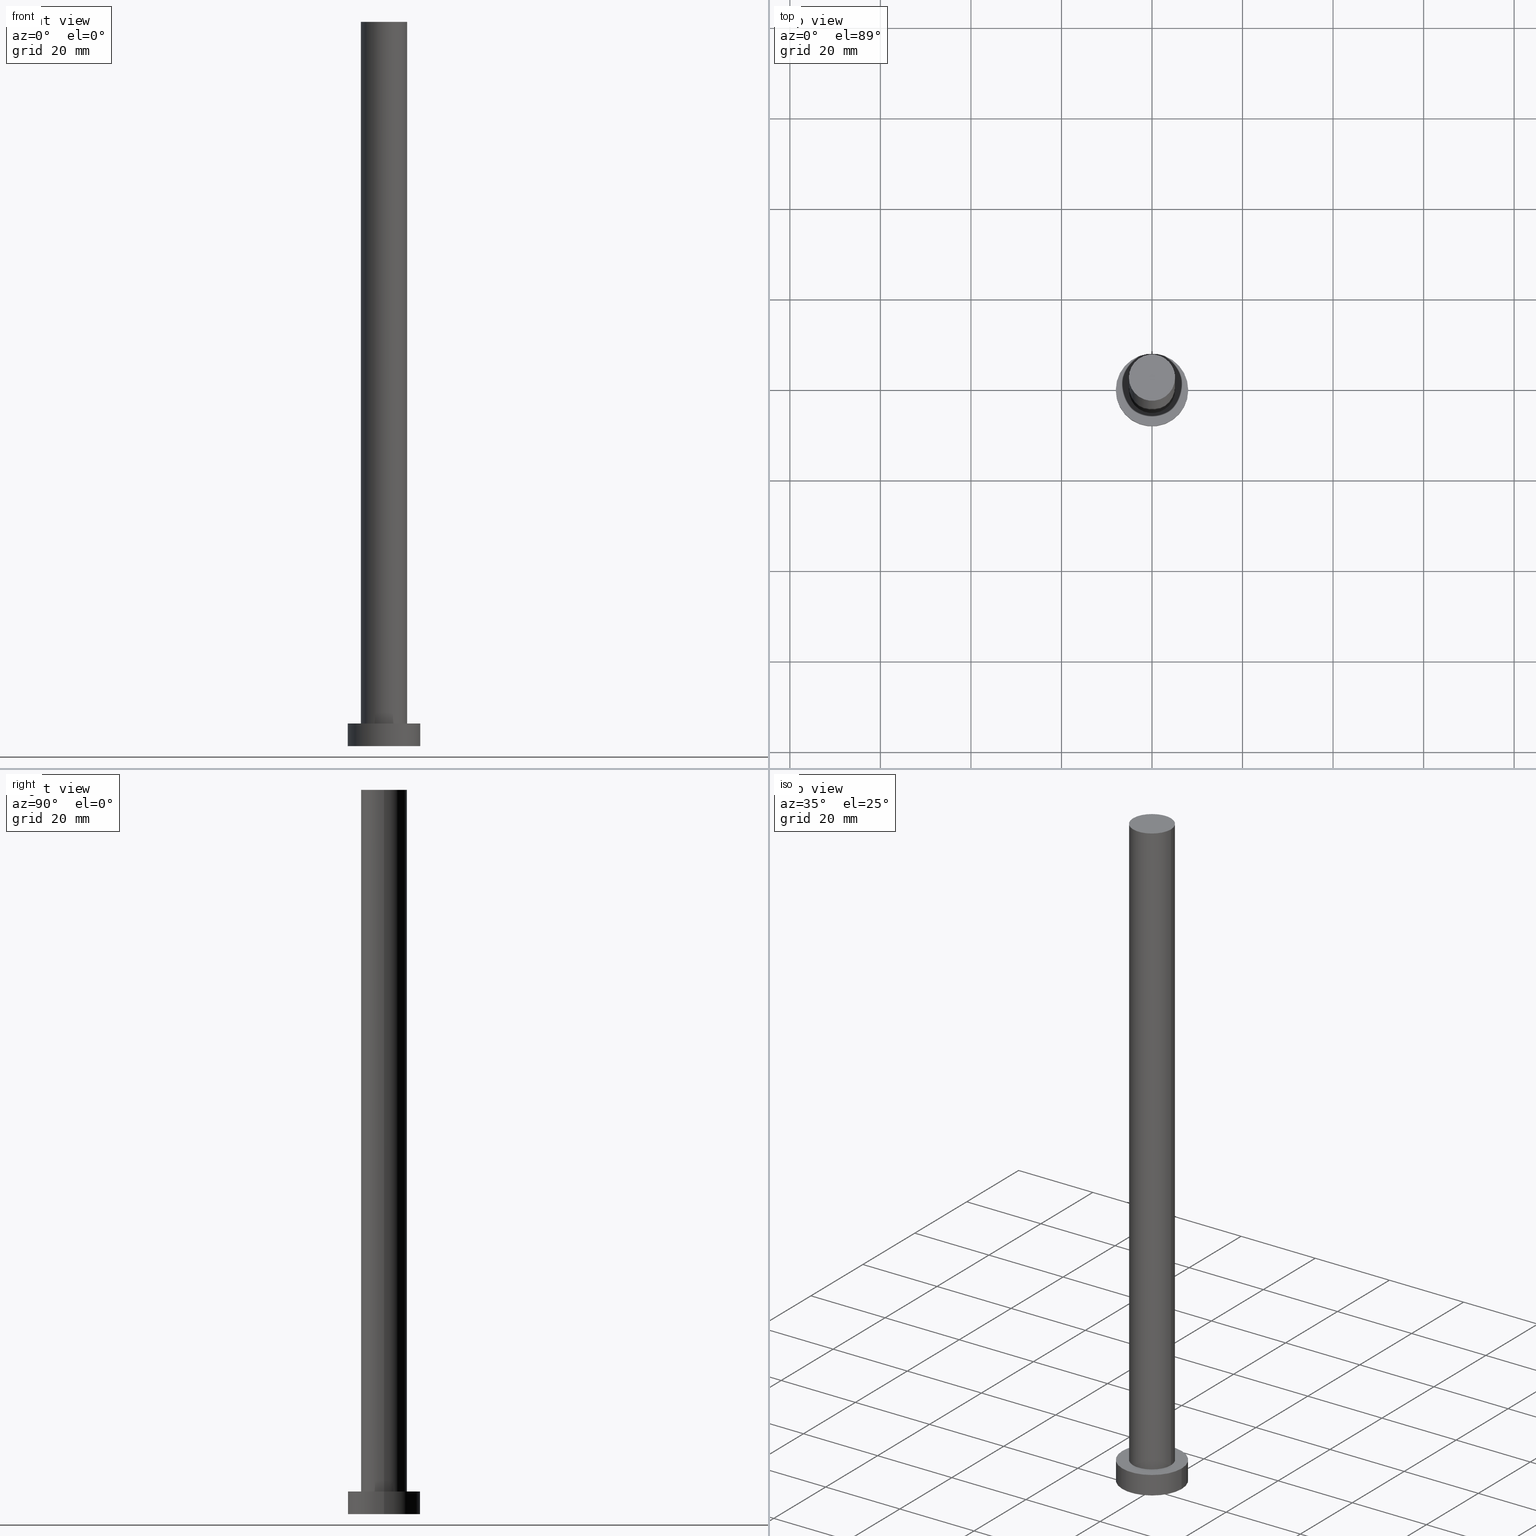
[diagram: canonical four-view strip — front | top / right | iso, engineering-drawing reading convention]
A machine part, canonical four-view strip (front | top / right | iso — engineering-drawing reading convention). The complete STEP part file that produces these views, byte-faithful:
ISO-10303-21;
HEADER;
FILE_DESCRIPTION (( 'STEP AP203' ),
    '1' );
FILE_NAME ('1567.STEP',
    '2023-02-13T11:14:19',
    ( '' ),
    ( '' ),
    'SwSTEP 2.0',
    'SolidWorks 2019',
    '' );
FILE_SCHEMA (( 'CONFIG_CONTROL_DESIGN' ));
ENDSEC;

DATA;
#1 = DIRECTION ( 'NONE',  ( -1.000000000000000000, 0.000000000000000000, 0.000000000000000000 ) ) ;
#2 = CARTESIAN_POINT ( 'NONE',  ( 0.000000000000000000, 0.000000000000000000, 0.000000000000000000 ) ) ;
#3 = VERTEX_POINT ( 'NONE', #233 ) ;
#4 = CIRCLE ( 'NONE', #102, 8.000000000000000000 ) ;
#5 = CALENDAR_DATE ( 2023, 13, 2 ) ;
#6 = DATE_AND_TIME ( #183, #180 ) ;
#7 = ADVANCED_FACE ( 'NONE', ( #207, #46 ), #107, .T. ) ;
#8 = CARTESIAN_POINT ( 'NONE',  ( 5.100000000000001421, 6.245698675651502811E-16, 160.0000000000000000 ) ) ;
#9 = LINE ( 'NONE', #246, #85 ) ;
#10 = CARTESIAN_POINT ( 'NONE',  ( 0.000000000000000000, 0.000000000000000000, 160.0000000000000000 ) ) ;
#11 = DESIGN_CONTEXT ( 'detailed design', #103, 'design' ) ;
#12 = CARTESIAN_POINT ( 'NONE',  ( 0.000000000000000000, 0.000000000000000000, 160.0000000000000000 ) ) ;
#13 = MANIFOLD_SOLID_BREP ( 'P�idat vysunut�m3', #67 ) ;
#14 = DIRECTION ( 'NONE',  ( -0.000000000000000000, -0.000000000000000000, -1.000000000000000000 ) ) ;
#15 = PERSON_AND_ORGANIZATION ( #235, #80 ) ;
#16 = DIRECTION ( 'NONE',  ( 0.000000000000000000, 0.000000000000000000, 1.000000000000000000 ) ) ;
#17 = EDGE_CURVE ( 'NONE', #92, #36, #167, .T. ) ;
#18 = APPLICATION_PROTOCOL_DEFINITION ( 'international standard', 'config_control_design', 1994, #103 ) ;
#19 = PRODUCT_RELATED_PRODUCT_CATEGORY ( 'detail', '', ( #105 ) ) ;
#20 = CC_DESIGN_DATE_AND_TIME_ASSIGNMENT ( #6, #139, ( #109 ) ) ;
#21 = APPROVAL_ROLE ( '' ) ;
#22 = ORIENTED_EDGE ( 'NONE', *, *, #194, .F. ) ;
#23 = COORDINATED_UNIVERSAL_TIME_OFFSET ( 1, 0, .AHEAD. ) ;
#24 =( GEOMETRIC_REPRESENTATION_CONTEXT ( 3 ) GLOBAL_UNCERTAINTY_ASSIGNED_CONTEXT ( ( #66 ) ) GLOBAL_UNIT_ASSIGNED_CONTEXT ( ( #188, #152, #250 ) ) REPRESENTATION_CONTEXT ( 'NONE', 'WORKASPACE' ) );
#25 = EDGE_CURVE ( 'NONE', #130, #110, #45, .T. ) ;
#26 = PERSON_AND_ORGANIZATION ( #235, #80 ) ;
#27 = LINE ( 'NONE', #189, #210 ) ;
#28 = APPROVAL_DATE_TIME ( #140, #155 ) ;
#29 = DIRECTION ( 'NONE',  ( 0.000000000000000000, 0.000000000000000000, 1.000000000000000000 ) ) ;
#30 = CIRCLE ( 'NONE', #129, 8.000000000000000000 ) ;
#31 = APPROVAL_DATE_TIME ( #126, #224 ) ;
#32 = PLANE ( 'NONE',  #35 ) ;
#33 = EDGE_CURVE ( 'NONE', #36, #92, #158, .T. ) ;
#34 = CIRCLE ( 'NONE', #208, 8.000000000000000000 ) ;
#35 = AXIS2_PLACEMENT_3D ( 'NONE', #12, #206, #186 ) ;
#36 = VERTEX_POINT ( 'NONE', #148 ) ;
#37 = COORDINATED_UNIVERSAL_TIME_OFFSET ( 1, 0, .AHEAD. ) ;
#38 = PERSON_AND_ORGANIZATION_ROLE ( 'design_owner' ) ;
#39 = MECHANICAL_CONTEXT ( 'NONE', #52, 'mechanical' ) ;
#40 = DIRECTION ( 'NONE',  ( -1.000000000000000000, 0.000000000000000000, 0.000000000000000000 ) ) ;
#41 = ORIENTED_EDGE ( 'NONE', *, *, #119, .T. ) ;
#42 = DATE_AND_TIME ( #5, #231 ) ;
#43 = CARTESIAN_POINT ( 'NONE',  ( 0.000000000000000000, 0.000000000000000000, 0.000000000000000000 ) ) ;
#44 = FACE_OUTER_BOUND ( 'NONE', #90, .T. ) ;
#45 = CIRCLE ( 'NONE', #136, 5.100000000000001421 ) ;
#46 = FACE_OUTER_BOUND ( 'NONE', #232, .T. ) ;
#47 = ADVANCED_FACE ( 'NONE', ( #48 ), #32, .T. ) ;
#48 = FACE_OUTER_BOUND ( 'NONE', #185, .T. ) ;
#49 = ORIENTED_EDGE ( 'NONE', *, *, #219, .F. ) ;
#50 = EDGE_CURVE ( 'NONE', #3, #255, #201, .T. ) ;
#51 = CC_DESIGN_APPROVAL ( #155, ( #149 ) ) ;
#52 = APPLICATION_CONTEXT ( 'configuration controlled 3d designs of mechanical parts and assemblies' ) ;
#53 = ORIENTED_EDGE ( 'NONE', *, *, #25, .F. ) ;
#54 = PERSON_AND_ORGANIZATION_ROLE ( 'design_supplier' ) ;
#55 = PERSON_AND_ORGANIZATION_ROLE ( 'classification_officer' ) ;
#56 = VERTEX_POINT ( 'NONE', #122 ) ;
#57 = CC_DESIGN_PERSON_AND_ORGANIZATION_ASSIGNMENT ( #196, #156, ( #75 ) ) ;
#58 = EDGE_LOOP ( 'NONE', ( #145, #131, #41, #87 ) ) ;
#59 = APPROVAL_PERSON_ORGANIZATION ( #26, #123, #21 ) ;
#60 = CARTESIAN_POINT ( 'NONE',  ( 8.000000000000000000, 9.797174393178825657E-16, 0.000000000000000000 ) ) ;
#61 = AXIS2_PLACEMENT_3D ( 'NONE', #203, #79, #154 ) ;
#62 = CC_DESIGN_PERSON_AND_ORGANIZATION_ASSIGNMENT ( #94, #54, ( #75 ) ) ;
#63 = CARTESIAN_POINT ( 'NONE',  ( 0.000000000000000000, 0.000000000000000000, 160.0000000000000000 ) ) ;
#64 = AXIS2_PLACEMENT_3D ( 'NONE', #181, #137, #1 ) ;
#65 = DIRECTION ( 'NONE',  ( 1.000000000000000000, 0.000000000000000000, -0.000000000000000000 ) ) ;
#66 = UNCERTAINTY_MEASURE_WITH_UNIT (LENGTH_MEASURE( 1.000000000000000082E-05 ), #188, 'distance_accuracy_value', 'NONE');
#67 = CLOSED_SHELL ( 'NONE', ( #111, #179, #234, #7, #241, #239, #47 ) ) ;
#68 = DIRECTION ( 'NONE',  ( 1.000000000000000000, 0.000000000000000000, 0.000000000000000000 ) ) ;
#69 = EDGE_LOOP ( 'NONE', ( #251, #113, #254, #153 ) ) ;
#70 = CALENDAR_DATE ( 2023, 13, 2 ) ;
#71 = AXIS2_PLACEMENT_3D ( 'NONE', #10, #29, #193 ) ;
#72 = ORIENTED_EDGE ( 'NONE', *, *, #25, .T. ) ;
#73 = ORIENTED_EDGE ( 'NONE', *, *, #194, .T. ) ;
#74 = CYLINDRICAL_SURFACE ( 'NONE', #64, 8.000000000000000000 ) ;
#75 = PRODUCT_DEFINITION_FORMATION_WITH_SPECIFIED_SOURCE ( 'LIBOVOLN�', '', #105, .NOT_KNOWN. ) ;
#76 = DIRECTION ( 'NONE',  ( 0.000000000000000000, 0.000000000000000000, 1.000000000000000000 ) ) ;
#77 = EDGE_CURVE ( 'NONE', #56, #127, #9, .T. ) ;
#78 = AXIS2_PLACEMENT_3D ( 'NONE', #171, #248, #106 ) ;
#79 = DIRECTION ( 'NONE',  ( -0.000000000000000000, -0.000000000000000000, -1.000000000000000000 ) ) ;
#80 = ORGANIZATION ( 'NEUR�EN�', 'NEUR�EN�', '' ) ;
#81 = APPROVAL_ROLE ( '' ) ;
#82 = DATE_AND_TIME ( #151, #199 ) ;
#83 = CARTESIAN_POINT ( 'NONE',  ( 0.000000000000000000, 0.000000000000000000, 5.000000000000000000 ) ) ;
#84 = ORIENTED_EDGE ( 'NONE', *, *, #204, .T. ) ;
#85 = VECTOR ( 'NONE', #143, 1000.000000000000000 ) ;
#86 = APPROVAL_STATUS ( 'not_yet_approved' ) ;
#87 = ORIENTED_EDGE ( 'NONE', *, *, #50, .F. ) ;
#88 = ORIENTED_EDGE ( 'NONE', *, *, #182, .T. ) ;
#89 = DATE_TIME_ROLE ( 'creation_date' ) ;
#90 = EDGE_LOOP ( 'NONE', ( #49, #73, #214, #252 ) ) ;
#91 = APPROVAL_ROLE ( '' ) ;
#92 = VERTEX_POINT ( 'NONE', #142 ) ;
#93 = CARTESIAN_POINT ( 'NONE',  ( 0.000000000000000000, 0.000000000000000000, 160.0000000000000000 ) ) ;
#94 = PERSON_AND_ORGANIZATION ( #235, #80 ) ;
#95 = CC_DESIGN_PERSON_AND_ORGANIZATION_ASSIGNMENT ( #236, #38, ( #105 ) ) ;
#96 = LOCAL_TIME ( 12, 14, 19.00000000000000000, #226 ) ;
#97 = APPROVAL_STATUS ( 'not_yet_approved' ) ;
#98 = AXIS2_PLACEMENT_3D ( 'NONE', #63, #144, #227 ) ;
#99 = AXIS2_PLACEMENT_3D ( 'NONE', #134, #216, #157 ) ;
#100 = DIRECTION ( 'NONE',  ( 1.000000000000000000, 0.000000000000000000, 0.000000000000000000 ) ) ;
#101 = DIRECTION ( 'NONE',  ( 1.000000000000000000, 0.000000000000000000, 0.000000000000000000 ) ) ;
#102 = AXIS2_PLACEMENT_3D ( 'NONE', #124, #170, #202 ) ;
#103 = APPLICATION_CONTEXT ( 'configuration controlled 3d designs of mechanical parts and assemblies' ) ;
#104 = CYLINDRICAL_SURFACE ( 'NONE', #98, 5.100000000000001421 ) ;
#105 = PRODUCT ( '1567', '1567', '', ( #39 ) ) ;
#106 = DIRECTION ( 'NONE',  ( 1.000000000000000000, 0.000000000000000000, 0.000000000000000000 ) ) ;
#107 = PLANE ( 'NONE',  #237 ) ;
#108 = CARTESIAN_POINT ( 'NONE',  ( 0.000000000000000000, 0.000000000000000000, 160.0000000000000000 ) ) ;
#109 = SECURITY_CLASSIFICATION ( '', '', #138 ) ;
#110 = VERTEX_POINT ( 'NONE', #168 ) ;
#111 = ADVANCED_FACE ( 'NONE', ( #44 ), #104, .T. ) ;
#112 = PERSON_AND_ORGANIZATION ( #235, #80 ) ;
#113 = ORIENTED_EDGE ( 'NONE', *, *, #204, .F. ) ;
#114 = EDGE_CURVE ( 'NONE', #130, #92, #27, .T. ) ;
#115 = PLANE ( 'NONE',  #99 ) ;
#116 = ORIENTED_EDGE ( 'NONE', *, *, #119, .F. ) ;
#117 = CC_DESIGN_APPROVAL ( #123, ( #109 ) ) ;
#118 = VECTOR ( 'NONE', #166, 1000.000000000000000 ) ;
#119 = EDGE_CURVE ( 'NONE', #127, #255, #169, .T. ) ;
#120 = DIRECTION ( 'NONE',  ( 0.000000000000000000, 0.000000000000000000, 1.000000000000000000 ) ) ;
#121 = AXIS2_PLACEMENT_3D ( 'NONE', #2, #76, #159 ) ;
#122 = CARTESIAN_POINT ( 'NONE',  ( 8.000000000000000000, 9.797174393178825657E-16, 5.000000000000000000 ) ) ;
#123 = APPROVAL ( #97, 'NEUR�EN�' ) ;
#124 = CARTESIAN_POINT ( 'NONE',  ( 0.000000000000000000, 0.000000000000000000, 5.000000000000000000 ) ) ;
#125 = CARTESIAN_POINT ( 'NONE',  ( 0.000000000000000000, 0.000000000000000000, 5.000000000000000000 ) ) ;
#126 = DATE_AND_TIME ( #146, #96 ) ;
#127 = VERTEX_POINT ( 'NONE', #60 ) ;
#128 = DIRECTION ( 'NONE',  ( 1.000000000000000000, 0.000000000000000000, 0.000000000000000000 ) ) ;
#129 = AXIS2_PLACEMENT_3D ( 'NONE', #43, #120, #101 ) ;
#130 = VERTEX_POINT ( 'NONE', #225 ) ;
#131 = ORIENTED_EDGE ( 'NONE', *, *, #77, .T. ) ;
#132 = VECTOR ( 'NONE', #184, 1000.000000000000000 ) ;
#133 = APPROVAL_STATUS ( 'not_yet_approved' ) ;
#134 = CARTESIAN_POINT ( 'NONE',  ( 0.000000000000000000, 0.000000000000000000, 0.000000000000000000 ) ) ;
#135 = COORDINATED_UNIVERSAL_TIME_OFFSET ( 1, 0, .AHEAD. ) ;
#136 = AXIS2_PLACEMENT_3D ( 'NONE', #108, #16, #128 ) ;
#137 = DIRECTION ( 'NONE',  ( -0.000000000000000000, -0.000000000000000000, -1.000000000000000000 ) ) ;
#138 = SECURITY_CLASSIFICATION_LEVEL ( 'unclassified' ) ;
#139 = DATE_TIME_ROLE ( 'classification_date' ) ;
#140 = DATE_AND_TIME ( #70, #165 ) ;
#141 = FACE_OUTER_BOUND ( 'NONE', #58, .T. ) ;
#142 = CARTESIAN_POINT ( 'NONE',  ( -5.100000000000001421, 0.000000000000000000, 5.000000000000000000 ) ) ;
#143 = DIRECTION ( 'NONE',  ( -0.000000000000000000, -0.000000000000000000, -1.000000000000000000 ) ) ;
#144 = DIRECTION ( 'NONE',  ( -0.000000000000000000, -0.000000000000000000, -1.000000000000000000 ) ) ;
#145 = ORIENTED_EDGE ( 'NONE', *, *, #182, .F. ) ;
#146 = CALENDAR_DATE ( 2023, 13, 2 ) ;
#147 = DIRECTION ( 'NONE',  ( 1.000000000000000000, 0.000000000000000000, 0.000000000000000000 ) ) ;
#148 = CARTESIAN_POINT ( 'NONE',  ( 5.100000000000001421, 6.245698675651502811E-16, 5.000000000000000000 ) ) ;
#149 = PRODUCT_DEFINITION ( 'NEZN�M�', '', #75, #11 ) ;
#150 = EDGE_LOOP ( 'NONE', ( #22, #53, #197, #228 ) ) ;
#151 = CALENDAR_DATE ( 2023, 13, 2 ) ;
#152 =( NAMED_UNIT ( * ) PLANE_ANGLE_UNIT ( ) SI_UNIT ( $, .RADIAN. ) );
#153 = ORIENTED_EDGE ( 'NONE', *, *, #247, .T. ) ;
#154 = DIRECTION ( 'NONE',  ( -1.000000000000000000, 0.000000000000000000, 0.000000000000000000 ) ) ;
#155 = APPROVAL ( #133, 'NEUR�EN�' ) ;
#156 = PERSON_AND_ORGANIZATION_ROLE ( 'creator' ) ;
#157 = DIRECTION ( 'NONE',  ( 1.000000000000000000, 0.000000000000000000, -0.000000000000000000 ) ) ;
#158 = CIRCLE ( 'NONE', #175, 5.100000000000001421 ) ;
#159 = DIRECTION ( 'NONE',  ( 1.000000000000000000, 0.000000000000000000, 0.000000000000000000 ) ) ;
#160 = DIRECTION ( 'NONE',  ( -0.000000000000000000, -0.000000000000000000, -1.000000000000000000 ) ) ;
#161 = CARTESIAN_POINT ( 'NONE',  ( 0.000000000000000000, 0.000000000000000000, 5.000000000000000000 ) ) ;
#162 = ORIENTED_EDGE ( 'NONE', *, *, #219, .T. ) ;
#163 = CYLINDRICAL_SURFACE ( 'NONE', #215, 5.100000000000001421 ) ;
#164 = LINE ( 'NONE', #8, #118 ) ;
#165 = LOCAL_TIME ( 12, 14, 19.00000000000000000, #37 ) ;
#166 = DIRECTION ( 'NONE',  ( -0.000000000000000000, -0.000000000000000000, -1.000000000000000000 ) ) ;
#167 = CIRCLE ( 'NONE', #217, 5.100000000000001421 ) ;
#168 = CARTESIAN_POINT ( 'NONE',  ( 5.100000000000001421, 6.245698675651502811E-16, 160.0000000000000000 ) ) ;
#169 = CIRCLE ( 'NONE', #78, 8.000000000000000000 ) ;
#170 = DIRECTION ( 'NONE',  ( 0.000000000000000000, 0.000000000000000000, 1.000000000000000000 ) ) ;
#171 = CARTESIAN_POINT ( 'NONE',  ( 0.000000000000000000, 0.000000000000000000, 0.000000000000000000 ) ) ;
#172 = DIRECTION ( 'NONE',  ( 0.000000000000000000, 0.000000000000000000, 1.000000000000000000 ) ) ;
#173 = PERSON_AND_ORGANIZATION ( #235, #80 ) ;
#174 = DIRECTION ( 'NONE',  ( 0.000000000000000000, 0.000000000000000000, 1.000000000000000000 ) ) ;
#175 = AXIS2_PLACEMENT_3D ( 'NONE', #83, #174, #68 ) ;
#176 = CC_DESIGN_DATE_AND_TIME_ASSIGNMENT ( #82, #89, ( #149 ) ) ;
#177 = ORIENTED_EDGE ( 'NONE', *, *, #17, .F. ) ;
#178 = PERSON_AND_ORGANIZATION ( #235, #80 ) ;
#179 = ADVANCED_FACE ( 'NONE', ( #141 ), #222, .T. ) ;
#180 = LOCAL_TIME ( 12, 14, 19.00000000000000000, #135 ) ;
#181 = CARTESIAN_POINT ( 'NONE',  ( 0.000000000000000000, 0.000000000000000000, 5.000000000000000000 ) ) ;
#182 = EDGE_CURVE ( 'NONE', #56, #3, #34, .T. ) ;
#183 = CALENDAR_DATE ( 2023, 13, 2 ) ;
#184 = DIRECTION ( 'NONE',  ( -0.000000000000000000, -0.000000000000000000, -1.000000000000000000 ) ) ;
#185 = EDGE_LOOP ( 'NONE', ( #72, #162 ) ) ;
#186 = DIRECTION ( 'NONE',  ( 1.000000000000000000, 0.000000000000000000, -0.000000000000000000 ) ) ;
#187 = ADVANCED_BREP_SHAPE_REPRESENTATION ( '1567', ( #13, #121 ), #24 ) ;
#188 =( LENGTH_UNIT ( ) NAMED_UNIT ( * ) SI_UNIT ( .MILLI., .METRE. ) );
#189 = CARTESIAN_POINT ( 'NONE',  ( -5.100000000000001421, 0.000000000000000000, 160.0000000000000000 ) ) ;
#190 = CARTESIAN_POINT ( 'NONE',  ( 0.000000000000000000, 0.000000000000000000, 5.000000000000000000 ) ) ;
#191 = APPROVAL_PERSON_ORGANIZATION ( #112, #155, #91 ) ;
#192 = COORDINATED_UNIVERSAL_TIME_OFFSET ( 1, 0, .AHEAD. ) ;
#193 = DIRECTION ( 'NONE',  ( 1.000000000000000000, 0.000000000000000000, 0.000000000000000000 ) ) ;
#194 = EDGE_CURVE ( 'NONE', #110, #36, #164, .T. ) ;
#195 = CIRCLE ( 'NONE', #71, 5.100000000000001421 ) ;
#196 = PERSON_AND_ORGANIZATION ( #235, #80 ) ;
#197 = ORIENTED_EDGE ( 'NONE', *, *, #114, .T. ) ;
#198 = FACE_OUTER_BOUND ( 'NONE', #150, .T. ) ;
#199 = LOCAL_TIME ( 12, 14, 19.00000000000000000, #192 ) ;
#200 = DIRECTION ( 'NONE',  ( 0.000000000000000000, 0.000000000000000000, 1.000000000000000000 ) ) ;
#201 = LINE ( 'NONE', #223, #132 ) ;
#202 = DIRECTION ( 'NONE',  ( 1.000000000000000000, 0.000000000000000000, 0.000000000000000000 ) ) ;
#203 = CARTESIAN_POINT ( 'NONE',  ( 0.000000000000000000, 0.000000000000000000, 5.000000000000000000 ) ) ;
#204 = EDGE_CURVE ( 'NONE', #3, #56, #4, .T. ) ;
#205 = CARTESIAN_POINT ( 'NONE',  ( -8.000000000000000000, 0.000000000000000000, 0.000000000000000000 ) ) ;
#206 = DIRECTION ( 'NONE',  ( 0.000000000000000000, 0.000000000000000000, 1.000000000000000000 ) ) ;
#207 = FACE_BOUND ( 'NONE', #240, .T. ) ;
#208 = AXIS2_PLACEMENT_3D ( 'NONE', #161, #200, #100 ) ;
#209 = EDGE_LOOP ( 'NONE', ( #211, #116 ) ) ;
#210 = VECTOR ( 'NONE', #14, 1000.000000000000000 ) ;
#211 = ORIENTED_EDGE ( 'NONE', *, *, #247, .F. ) ;
#212 = FACE_OUTER_BOUND ( 'NONE', #69, .T. ) ;
#213 = APPLICATION_PROTOCOL_DEFINITION ( 'international standard', 'config_control_design', 1994, #52 ) ;
#214 = ORIENTED_EDGE ( 'NONE', *, *, #33, .T. ) ;
#215 = AXIS2_PLACEMENT_3D ( 'NONE', #93, #160, #40 ) ;
#216 = DIRECTION ( 'NONE',  ( 0.000000000000000000, 0.000000000000000000, 1.000000000000000000 ) ) ;
#217 = AXIS2_PLACEMENT_3D ( 'NONE', #125, #172, #147 ) ;
#218 = FACE_OUTER_BOUND ( 'NONE', #209, .T. ) ;
#219 = EDGE_CURVE ( 'NONE', #110, #130, #195, .T. ) ;
#220 = CC_DESIGN_PERSON_AND_ORGANIZATION_ASSIGNMENT ( #15, #243, ( #149 ) ) ;
#221 = APPROVAL_PERSON_ORGANIZATION ( #173, #224, #81 ) ;
#222 = CYLINDRICAL_SURFACE ( 'NONE', #61, 8.000000000000000000 ) ;
#223 = CARTESIAN_POINT ( 'NONE',  ( -8.000000000000000000, 0.000000000000000000, 5.000000000000000000 ) ) ;
#224 = APPROVAL ( #86, 'NEUR�EN�' ) ;
#225 = CARTESIAN_POINT ( 'NONE',  ( -5.100000000000001421, 0.000000000000000000, 160.0000000000000000 ) ) ;
#226 = COORDINATED_UNIVERSAL_TIME_OFFSET ( 1, 0, .AHEAD. ) ;
#227 = DIRECTION ( 'NONE',  ( -1.000000000000000000, 0.000000000000000000, 0.000000000000000000 ) ) ;
#228 = ORIENTED_EDGE ( 'NONE', *, *, #17, .T. ) ;
#229 = DIRECTION ( 'NONE',  ( 0.000000000000000000, 0.000000000000000000, 1.000000000000000000 ) ) ;
#230 = CC_DESIGN_SECURITY_CLASSIFICATION ( #109, ( #75 ) ) ;
#231 = LOCAL_TIME ( 12, 14, 19.00000000000000000, #23 ) ;
#232 = EDGE_LOOP ( 'NONE', ( #84, #88 ) ) ;
#233 = CARTESIAN_POINT ( 'NONE',  ( -8.000000000000000000, 0.000000000000000000, 5.000000000000000000 ) ) ;
#234 = ADVANCED_FACE ( 'NONE', ( #212 ), #74, .T. ) ;
#235 = PERSON ( 'NEUR�EN�', 'NEUR�EN�', 'NEUR�EN�', ('NEUR�EN�'), ('NEUR�EN�'), ('NEUR�EN�') ) ;
#236 = PERSON_AND_ORGANIZATION ( #235, #80 ) ;
#237 = AXIS2_PLACEMENT_3D ( 'NONE', #190, #229, #65 ) ;
#238 = APPROVAL_DATE_TIME ( #42, #123 ) ;
#239 = ADVANCED_FACE ( 'NONE', ( #198 ), #163, .T. ) ;
#240 = EDGE_LOOP ( 'NONE', ( #177, #249 ) ) ;
#241 = ADVANCED_FACE ( 'NONE', ( #218 ), #115, .F. ) ;
#242 = SHAPE_DEFINITION_REPRESENTATION ( #245, #187 ) ;
#243 = PERSON_AND_ORGANIZATION_ROLE ( 'creator' ) ;
#244 = CC_DESIGN_APPROVAL ( #224, ( #75 ) ) ;
#245 = PRODUCT_DEFINITION_SHAPE ( 'NONE', 'NONE',  #149 ) ;
#246 = CARTESIAN_POINT ( 'NONE',  ( 8.000000000000000000, 9.797174393178825657E-16, 5.000000000000000000 ) ) ;
#247 = EDGE_CURVE ( 'NONE', #255, #127, #30, .T. ) ;
#248 = DIRECTION ( 'NONE',  ( 0.000000000000000000, 0.000000000000000000, 1.000000000000000000 ) ) ;
#249 = ORIENTED_EDGE ( 'NONE', *, *, #33, .F. ) ;
#250 =( NAMED_UNIT ( * ) SI_UNIT ( $, .STERADIAN. ) SOLID_ANGLE_UNIT ( ) );
#251 = ORIENTED_EDGE ( 'NONE', *, *, #77, .F. ) ;
#252 = ORIENTED_EDGE ( 'NONE', *, *, #114, .F. ) ;
#253 = CC_DESIGN_PERSON_AND_ORGANIZATION_ASSIGNMENT ( #178, #55, ( #109 ) ) ;
#254 = ORIENTED_EDGE ( 'NONE', *, *, #50, .T. ) ;
#255 = VERTEX_POINT ( 'NONE', #205 ) ;
ENDSEC;
END-ISO-10303-21;
